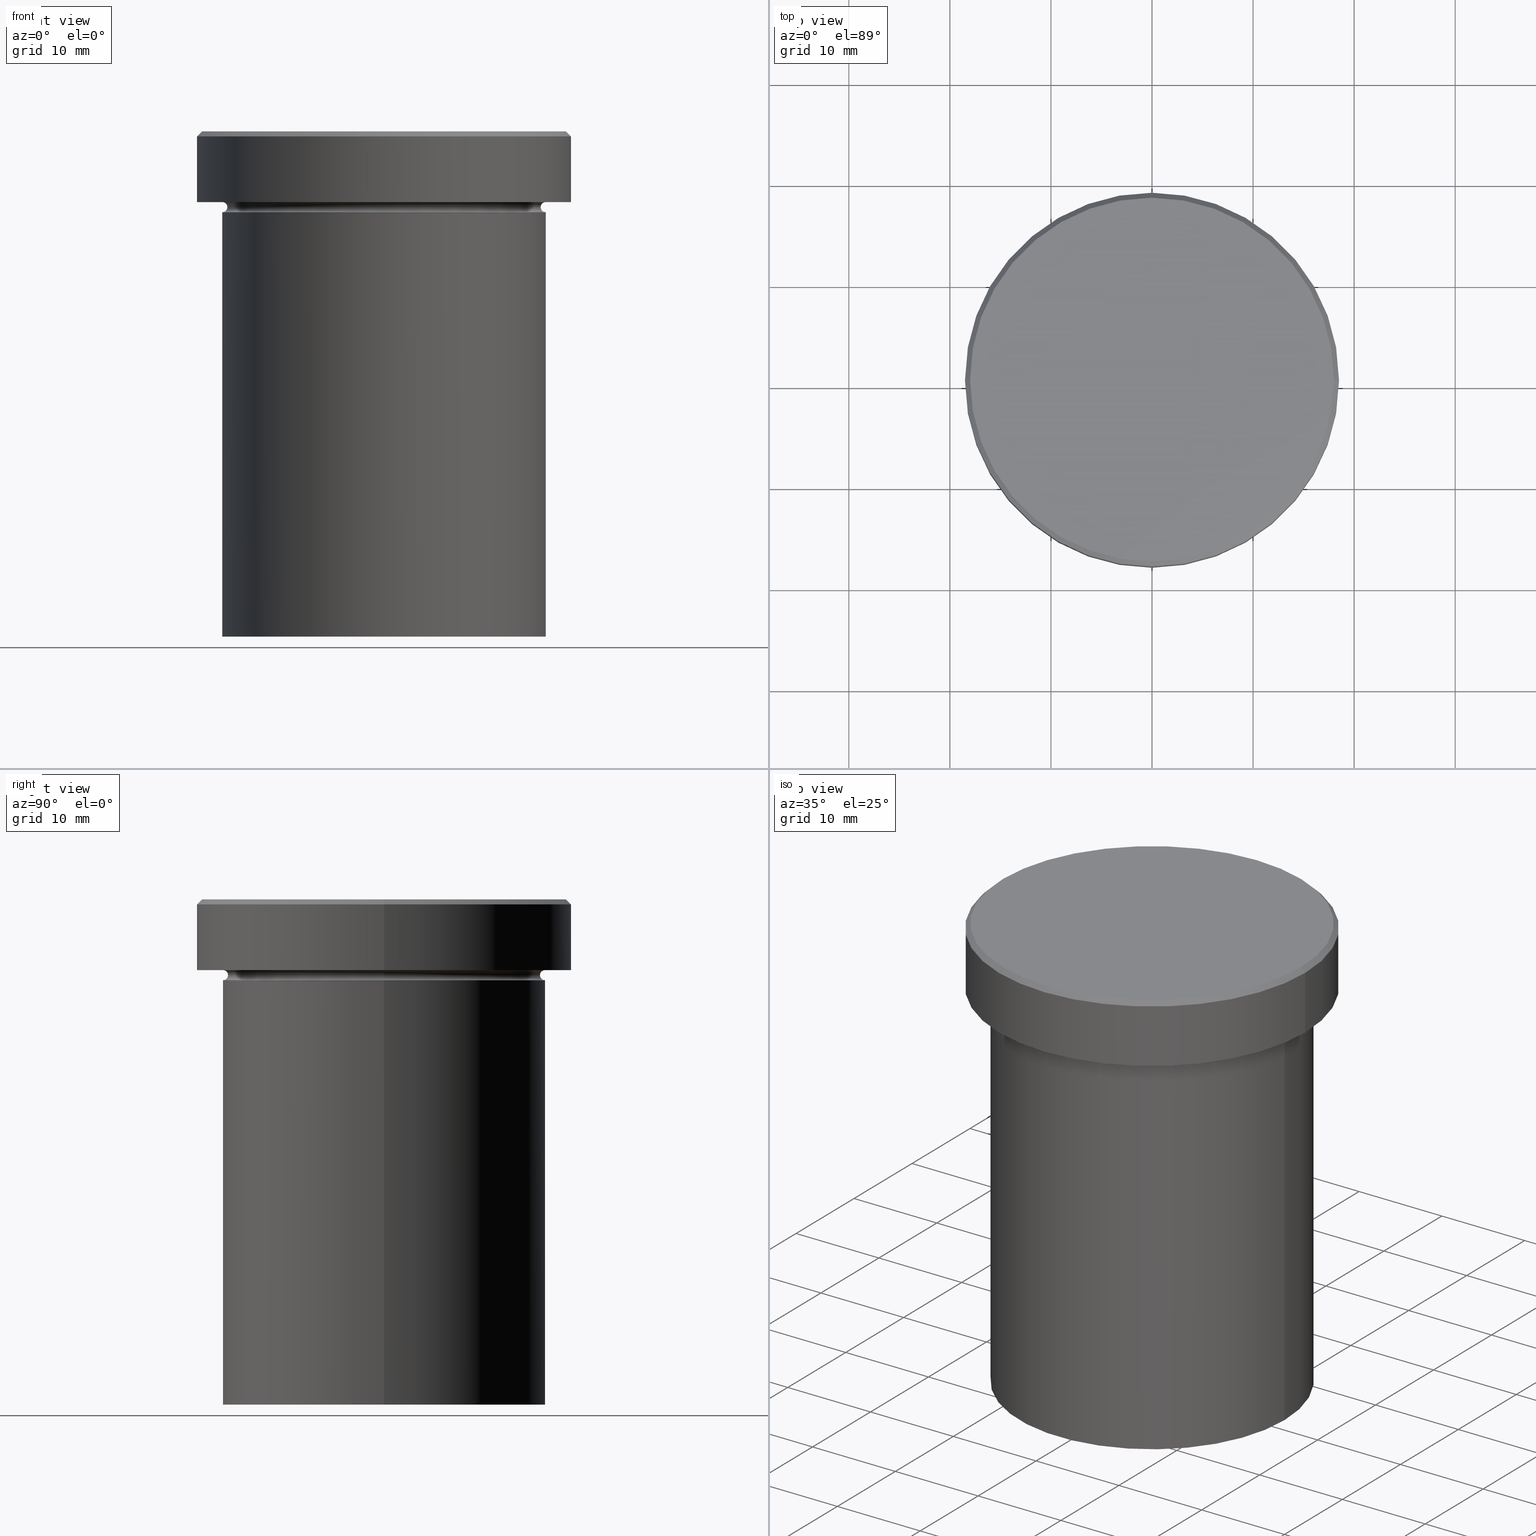
[diagram: canonical four-view strip — front | top / right | iso, engineering-drawing reading convention]
A machine part, canonical four-view strip (front | top / right | iso — engineering-drawing reading convention). The complete STEP part file that produces these views, byte-faithful:
ISO-10303-21;
HEADER;
FILE_DESCRIPTION (( 'STEP AP203' ),
    '1' );
FILE_NAME ('091a.STEP',
    '2024-01-02T18:54:28',
    ( '' ),
    ( '' ),
    'SwSTEP 2.0',
    'SolidWorks 2019',
    '' );
FILE_SCHEMA (( 'CONFIG_CONTROL_DESIGN' ));
ENDSEC;

DATA;
#1 = DATE_TIME_ROLE ( 'classification_date' ) ;
#2 = MANIFOLD_SOLID_BREP ( 'Zkosen�1', #281 ) ;
#3 = DIRECTION ( 'NONE',  ( 0.000000000000000000, 0.000000000000000000, -1.000000000000000000 ) ) ;
#4 = ORIENTED_EDGE ( 'NONE', *, *, #327, .F. ) ;
#5 = APPROVAL_DATE_TIME ( #103, #389 ) ;
#6 = LINE ( 'NONE', #222, #160 ) ;
#7 = AXIS2_PLACEMENT_3D ( 'NONE', #261, #41, #295 ) ;
#8 = COORDINATED_UNIVERSAL_TIME_OFFSET ( 1, 0, .AHEAD. ) ;
#9 = CARTESIAN_POINT ( 'NONE',  ( 0.000000000000000000, 0.000000000000000000, -7.500000000000000000 ) ) ;
#10 = CIRCLE ( 'NONE', #334, 15.50000000000000000 ) ;
#11 = EDGE_CURVE ( 'NONE', #29, #23, #303, .T. ) ;
#12 = FACE_OUTER_BOUND ( 'NONE', #300, .T. ) ;
#13 = CARTESIAN_POINT ( 'NONE',  ( -16.00000000000000000, 1.959434878635765131E-15, -7.500000000000000000 ) ) ;
#14 = CARTESIAN_POINT ( 'NONE',  ( 0.000000000000000000, 0.000000000000000000, 0.000000000000000000 ) ) ;
#15 = DIRECTION ( 'NONE',  ( -1.000000000000000000, -1.224646799147349509E-16, 0.000000000000000000 ) ) ;
#16 = FACE_OUTER_BOUND ( 'NONE', #335, .T. ) ;
#17 = ADVANCED_FACE ( 'NONE', ( #50 ), #141, .F. ) ;
#18 = CARTESIAN_POINT ( 'NONE',  ( 0.000000000000000000, 0.000000000000000000, -7.500000000000000000 ) ) ;
#19 = AXIS2_PLACEMENT_3D ( 'NONE', #183, #277, #185 ) ;
#20 = EDGE_LOOP ( 'NONE', ( #347, #258, #84, #198 ) ) ;
#21 = EDGE_CURVE ( 'NONE', #47, #213, #107, .T. ) ;
#22 = CARTESIAN_POINT ( 'NONE',  ( 0.000000000000000000, 0.000000000000000000, 0.000000000000000000 ) ) ;
#23 = VERTEX_POINT ( 'NONE', #56 ) ;
#24 = CARTESIAN_POINT ( 'NONE',  ( 15.50000000000000000, 0.000000000000000000, -7.500000000000000000 ) ) ;
#25 = AXIS2_PLACEMENT_3D ( 'NONE', #138, #69, #392 ) ;
#26 = ORIENTED_EDGE ( 'NONE', *, *, #76, .T. ) ;
#27 = ORIENTED_EDGE ( 'NONE', *, *, #181, .T. ) ;
#28 = CARTESIAN_POINT ( 'NONE',  ( 0.000000000000000000, 16.00000000000000000, -50.00000000000000000 ) ) ;
#29 = VERTEX_POINT ( 'NONE', #402 ) ;
#30 = DIRECTION ( 'NONE',  ( -1.000000000000000000, 0.000000000000000000, 0.000000000000000000 ) ) ;
#31 = EDGE_CURVE ( 'NONE', #188, #191, #343, .T. ) ;
#32 = PRODUCT_DEFINITION_SHAPE ( 'NONE', 'NONE',  #62 ) ;
#33 = PERSON_AND_ORGANIZATION ( #117, #241 ) ;
#34 = ORIENTED_EDGE ( 'NONE', *, *, #145, .T. ) ;
#35 = APPROVAL_STATUS ( 'not_yet_approved' ) ;
#36 = CC_DESIGN_PERSON_AND_ORGANIZATION_ASSIGNMENT ( #132, #92, ( #346 ) ) ;
#37 = CARTESIAN_POINT ( 'NONE',  ( 0.000000000000000000, 0.000000000000000000, 0.000000000000000000 ) ) ;
#38 = CIRCLE ( 'NONE', #149, 16.00000000000000000 ) ;
#39 = AXIS2_PLACEMENT_3D ( 'NONE', #398, #407, #123 ) ;
#40 = DIRECTION ( 'NONE',  ( 0.000000000000000000, 0.000000000000000000, -1.000000000000000000 ) ) ;
#41 = DIRECTION ( 'NONE',  ( 0.000000000000000000, -0.000000000000000000, 1.000000000000000000 ) ) ;
#42 = EDGE_CURVE ( 'NONE', #191, #188, #78, .T. ) ;
#43 = DIRECTION ( 'NONE',  ( -1.000000000000000000, 0.000000000000000000, 0.000000000000000000 ) ) ;
#44 = ORIENTED_EDGE ( 'NONE', *, *, #76, .F. ) ;
#45 = DIRECTION ( 'NONE',  ( -1.224646799147353207E-16, 1.000000000000000000, 0.000000000000000000 ) ) ;
#46 = ORIENTED_EDGE ( 'NONE', *, *, #327, .T. ) ;
#47 = VERTEX_POINT ( 'NONE', #406 ) ;
#48 = EDGE_CURVE ( 'NONE', #87, #99, #194, .T. ) ;
#49 = APPLICATION_PROTOCOL_DEFINITION ( 'international standard', 'config_control_design', 1994, #223 ) ;
#50 = FACE_OUTER_BOUND ( 'NONE', #374, .T. ) ;
#51 = AXIS2_PLACEMENT_3D ( 'NONE', #77, #240, #324 ) ;
#52 = AXIS2_PLACEMENT_3D ( 'NONE', #362, #171, #357 ) ;
#53 = DIRECTION ( 'NONE',  ( 0.000000000000000000, 0.000000000000000000, -1.000000000000000000 ) ) ;
#54 = EDGE_CURVE ( 'NONE', #184, #87, #388, .T. ) ;
#55 = DIRECTION ( 'NONE',  ( 1.000000000000000000, 0.000000000000000000, 0.000000000000000000 ) ) ;
#56 = CARTESIAN_POINT ( 'NONE',  ( 18.50000000000000000, 0.000000000000000000, -0.5000000000000004441 ) ) ;
#57 = CARTESIAN_POINT ( 'NONE',  ( 0.000000000000000000, 0.000000000000000000, -0.5000000000000004441 ) ) ;
#58 = CARTESIAN_POINT ( 'NONE',  ( 0.000000000000000000, 0.000000000000000000, 0.000000000000000000 ) ) ;
#59 = ORIENTED_EDGE ( 'NONE', *, *, #181, .F. ) ;
#60 = AXIS2_PLACEMENT_3D ( 'NONE', #57, #215, #210 ) ;
#61 = DATE_TIME_ROLE ( 'creation_date' ) ;
#62 = PRODUCT_DEFINITION ( 'NEZN�M�', '', #346, #147 ) ;
#63 = VERTEX_POINT ( 'NONE', #136 ) ;
#64 = EDGE_LOOP ( 'NONE', ( #217, #4 ) ) ;
#65 = ORIENTED_EDGE ( 'NONE', *, *, #48, .T. ) ;
#66 = APPROVAL_DATE_TIME ( #189, #400 ) ;
#67 = DIRECTION ( 'NONE',  ( -0.000000000000000000, -0.000000000000000000, 1.000000000000000000 ) ) ;
#68 = EDGE_CURVE ( 'NONE', #368, #47, #317, .T. ) ;
#69 = DIRECTION ( 'NONE',  ( 0.000000000000000000, 0.000000000000000000, -1.000000000000000000 ) ) ;
#70 = TOROIDAL_SURFACE ( 'NONE', #292, 16.00000000000000000, 0.5000000000000000000 ) ;
#71 = CYLINDRICAL_SURFACE ( 'NONE', #110, 16.00000000000000000 ) ;
#72 = AXIS2_PLACEMENT_3D ( 'NONE', #18, #403, #274 ) ;
#73 = VERTEX_POINT ( 'NONE', #135 ) ;
#74 = LOCAL_TIME ( 19, 54, 28.00000000000000000, #8 ) ;
#75 = CARTESIAN_POINT ( 'NONE',  ( 0.000000000000000000, 0.000000000000000000, -6.999999999999999112 ) ) ;
#76 = EDGE_CURVE ( 'NONE', #47, #368, #10, .T. ) ;
#77 = CARTESIAN_POINT ( 'NONE',  ( 0.000000000000000000, 0.000000000000000000, -50.00000000000000000 ) ) ;
#78 = CIRCLE ( 'NONE', #88, 18.00000000000000355 ) ;
#79 = DIRECTION ( 'NONE',  ( 1.000000000000000000, 0.000000000000000000, 0.000000000000000000 ) ) ;
#80 =( GEOMETRIC_REPRESENTATION_CONTEXT ( 3 ) GLOBAL_UNCERTAINTY_ASSIGNED_CONTEXT ( ( #331 ) ) GLOBAL_UNIT_ASSIGNED_CONTEXT ( ( #153, #246, #342 ) ) REPRESENTATION_CONTEXT ( 'NONE', 'WORKASPACE' ) );
#81 = CYLINDRICAL_SURFACE ( 'NONE', #320, 18.50000000000000000 ) ;
#82 = PERSON_AND_ORGANIZATION ( #117, #241 ) ;
#83 = DIRECTION ( 'NONE',  ( -0.000000000000000000, -1.000000000000000000, -0.000000000000000000 ) ) ;
#84 = ORIENTED_EDGE ( 'NONE', *, *, #91, .T. ) ;
#85 = CARTESIAN_POINT ( 'NONE',  ( 0.000000000000000000, 0.000000000000000000, 0.000000000000000000 ) ) ;
#86 = DIRECTION ( 'NONE',  ( -1.000000000000000000, 0.000000000000000000, -0.000000000000000000 ) ) ;
#87 = VERTEX_POINT ( 'NONE', #254 ) ;
#88 = AXIS2_PLACEMENT_3D ( 'NONE', #58, #154, #180 ) ;
#89 = ORIENTED_EDGE ( 'NONE', *, *, #394, .T. ) ;
#90 = ORIENTED_EDGE ( 'NONE', *, *, #172, .T. ) ;
#91 = EDGE_CURVE ( 'NONE', #188, #260, #6, .T. ) ;
#92 = PERSON_AND_ORGANIZATION_ROLE ( 'creator' ) ;
#93 = AXIS2_PLACEMENT_3D ( 'NONE', #197, #315, #166 ) ;
#94 = AXIS2_PLACEMENT_3D ( 'NONE', #85, #372, #120 ) ;
#95 = DIRECTION ( 'NONE',  ( 1.000000000000000000, 0.000000000000000000, 0.000000000000000000 ) ) ;
#96 = PERSON_AND_ORGANIZATION ( #117, #241 ) ;
#97 = CARTESIAN_POINT ( 'NONE',  ( 16.00000000000000000, 0.000000000000000000, 0.000000000000000000 ) ) ;
#98 = PRODUCT ( '091a', '091a', '', ( #118 ) ) ;
#99 = VERTEX_POINT ( 'NONE', #350 ) ;
#100 = COORDINATED_UNIVERSAL_TIME_OFFSET ( 1, 0, .AHEAD. ) ;
#101 = DIRECTION ( 'NONE',  ( 0.000000000000000000, 0.000000000000000000, -1.000000000000000000 ) ) ;
#102 = ADVANCED_FACE ( 'NONE', ( #230 ), #70, .F. ) ;
#103 = DATE_AND_TIME ( #279, #74 ) ;
#104 = CONICAL_SURFACE ( 'NONE', #359, 18.00000000000000355, 0.7853981633974447263 ) ;
#105 = ORIENTED_EDGE ( 'NONE', *, *, #157, .F. ) ;
#106 = DIRECTION ( 'NONE',  ( -1.000000000000000000, 1.224646799147349509E-16, 0.000000000000000000 ) ) ;
#107 = CIRCLE ( 'NONE', #177, 0.5000000000000004441 ) ;
#108 = EDGE_CURVE ( 'NONE', #29, #73, #129, .T. ) ;
#109 = DIRECTION ( 'NONE',  ( -0.000000000000000000, -0.000000000000000000, 1.000000000000000000 ) ) ;
#110 = AXIS2_PLACEMENT_3D ( 'NONE', #14, #142, #262 ) ;
#111 = AXIS2_PLACEMENT_3D ( 'NONE', #75, #322, #174 ) ;
#112 = CARTESIAN_POINT ( 'NONE',  ( 16.00000000000000000, 0.000000000000000000, -7.500000000000000000 ) ) ;
#113 = FACE_OUTER_BOUND ( 'NONE', #268, .T. ) ;
#114 = CC_DESIGN_PERSON_AND_ORGANIZATION_ASSIGNMENT ( #33, #256, ( #62 ) ) ;
#115 = DIRECTION ( 'NONE',  ( 1.000000000000000000, 0.000000000000000000, 0.000000000000000000 ) ) ;
#116 = CC_DESIGN_APPROVAL ( #400, ( #379 ) ) ;
#117 = PERSON ( 'NEUR�EN�', 'NEUR�EN�', 'NEUR�EN�', ('NEUR�EN�'), ('NEUR�EN�'), ('NEUR�EN�') ) ;
#118 = MECHANICAL_CONTEXT ( 'NONE', #239, 'mechanical' ) ;
#119 = ORIENTED_EDGE ( 'NONE', *, *, #91, .F. ) ;
#120 = DIRECTION ( 'NONE',  ( 1.000000000000000000, 0.000000000000000000, 0.000000000000000000 ) ) ;
#121 = EDGE_LOOP ( 'NONE', ( #263, #243 ) ) ;
#122 = FACE_OUTER_BOUND ( 'NONE', #284, .T. ) ;
#123 = DIRECTION ( 'NONE',  ( 1.000000000000000000, 0.000000000000000000, 0.000000000000000000 ) ) ;
#124 = DIRECTION ( 'NONE',  ( -0.000000000000000000, -0.000000000000000000, 1.000000000000000000 ) ) ;
#125 = ADVANCED_FACE ( 'NONE', ( #161 ), #314, .T. ) ;
#126 = ORIENTED_EDGE ( 'NONE', *, *, #306, .F. ) ;
#127 = DIRECTION ( 'NONE',  ( -1.000000000000000000, 0.000000000000000000, -0.000000000000000000 ) ) ;
#128 = LOCAL_TIME ( 19, 54, 28.00000000000000000, #302 ) ;
#129 = CIRCLE ( 'NONE', #93, 18.50000000000000000 ) ;
#130 = AXIS2_PLACEMENT_3D ( 'NONE', #112, #365, #207 ) ;
#131 = LINE ( 'NONE', #144, #338 ) ;
#132 = PERSON_AND_ORGANIZATION ( #117, #241 ) ;
#133 = EDGE_CURVE ( 'NONE', #63, #99, #380, .T. ) ;
#134 = COORDINATED_UNIVERSAL_TIME_OFFSET ( 1, 0, .AHEAD. ) ;
#135 = CARTESIAN_POINT ( 'NONE',  ( -18.50000000000000000, 2.265596578422603396E-15, -6.999999999999998224 ) ) ;
#136 = CARTESIAN_POINT ( 'NONE',  ( -16.00000000000000000, 1.959434878635765131E-15, -50.00000000000000000 ) ) ;
#137 = CIRCLE ( 'NONE', #271, 16.00000000000000000 ) ;
#138 = CARTESIAN_POINT ( 'NONE',  ( 0.000000000000000000, 0.000000000000000000, 0.000000000000000000 ) ) ;
#139 = EDGE_CURVE ( 'NONE', #191, #23, #131, .T. ) ;
#140 = DIRECTION ( 'NONE',  ( 0.7071067811865451302, 8.659560562354903276E-17, -0.7071067811865500152 ) ) ;
#141 = TOROIDAL_SURFACE ( 'NONE', #371, 16.00000000000000000, 0.5000000000000000000 ) ;
#142 = DIRECTION ( 'NONE',  ( -0.000000000000000000, -0.000000000000000000, 1.000000000000000000 ) ) ;
#143 = ORIENTED_EDGE ( 'NONE', *, *, #253, .T. ) ;
#144 = CARTESIAN_POINT ( 'NONE',  ( 18.00000000000000355, 2.204364238465235822E-15, 0.000000000000000000 ) ) ;
#145 = EDGE_CURVE ( 'NONE', #23, #260, #301, .T. ) ;
#146 = CARTESIAN_POINT ( 'NONE',  ( 16.00000000000000000, 0.000000000000000000, -50.00000000000000000 ) ) ;
#147 = DESIGN_CONTEXT ( 'detailed design', #223, 'design' ) ;
#148 = APPLICATION_PROTOCOL_DEFINITION ( 'international standard', 'config_control_design', 1994, #239 ) ;
#149 = AXIS2_PLACEMENT_3D ( 'NONE', #328, #390, #202 ) ;
#150 = CALENDAR_DATE ( 2024, 2, 1 ) ;
#151 = CARTESIAN_POINT ( 'NONE',  ( 0.000000000000000000, 0.000000000000000000, -7.500000000000000000 ) ) ;
#152 = ORIENTED_EDGE ( 'NONE', *, *, #133, .F. ) ;
#153 =( LENGTH_UNIT ( ) NAMED_UNIT ( * ) SI_UNIT ( .MILLI., .METRE. ) );
#154 = DIRECTION ( 'NONE',  ( -0.000000000000000000, -0.000000000000000000, 1.000000000000000000 ) ) ;
#155 = LOCAL_TIME ( 19, 54, 28.00000000000000000, #134 ) ;
#156 = FACE_OUTER_BOUND ( 'NONE', #358, .T. ) ;
#157 = EDGE_CURVE ( 'NONE', #368, #87, #304, .T. ) ;
#158 = ORIENTED_EDGE ( 'NONE', *, *, #42, .T. ) ;
#159 = COORDINATED_UNIVERSAL_TIME_OFFSET ( 1, 0, .AHEAD. ) ;
#160 = VECTOR ( 'NONE', #226, 1000.000000000000114 ) ;
#161 = FACE_OUTER_BOUND ( 'NONE', #121, .T. ) ;
#162 = SHAPE_DEFINITION_REPRESENTATION ( #32, #233 ) ;
#163 = CC_DESIGN_APPROVAL ( #187, ( #62 ) ) ;
#164 = PERSON_AND_ORGANIZATION ( #117, #241 ) ;
#165 = CALENDAR_DATE ( 2024, 2, 1 ) ;
#166 = DIRECTION ( 'NONE',  ( 1.000000000000000000, 0.000000000000000000, 0.000000000000000000 ) ) ;
#167 = DIRECTION ( 'NONE',  ( -0.000000000000000000, -0.000000000000000000, 1.000000000000000000 ) ) ;
#168 = VECTOR ( 'NONE', #109, 1000.000000000000000 ) ;
#169 = CARTESIAN_POINT ( 'NONE',  ( 0.000000000000000000, 0.000000000000000000, 0.000000000000000000 ) ) ;
#170 = EDGE_LOOP ( 'NONE', ( #312, #395 ) ) ;
#171 = DIRECTION ( 'NONE',  ( -0.000000000000000000, -0.000000000000000000, 1.000000000000000000 ) ) ;
#172 = EDGE_CURVE ( 'NONE', #99, #87, #38, .T. ) ;
#173 = DIRECTION ( 'NONE',  ( -0.000000000000000000, -0.000000000000000000, 1.000000000000000000 ) ) ;
#174 = DIRECTION ( 'NONE',  ( -1.000000000000000000, 0.000000000000000000, 0.000000000000000000 ) ) ;
#175 = PLANE ( 'NONE',  #321 ) ;
#176 = ORIENTED_EDGE ( 'NONE', *, *, #108, .T. ) ;
#177 = AXIS2_PLACEMENT_3D ( 'NONE', #212, #83, #333 ) ;
#178 = APPROVAL_ROLE ( '' ) ;
#179 = LOCAL_TIME ( 19, 54, 28.00000000000000000, #100 ) ;
#180 = DIRECTION ( 'NONE',  ( 1.000000000000000000, 0.000000000000000000, 0.000000000000000000 ) ) ;
#181 = EDGE_CURVE ( 'NONE', #368, #247, #208, .T. ) ;
#182 = TOROIDAL_SURFACE ( 'NONE', #19, 16.00000000000000000, 0.5000000000000000000 ) ;
#183 = CARTESIAN_POINT ( 'NONE',  ( 0.000000000000000000, 0.000000000000000000, -7.500000000000000000 ) ) ;
#184 = VERTEX_POINT ( 'NONE', #146 ) ;
#185 = DIRECTION ( 'NONE',  ( 1.000000000000000000, 0.000000000000000000, 0.000000000000000000 ) ) ;
#186 = AXIS2_PLACEMENT_3D ( 'NONE', #9, #386, #190 ) ;
#187 = APPROVAL ( #214, 'NEUR�EN�' ) ;
#188 = VERTEX_POINT ( 'NONE', #266 ) ;
#189 = DATE_AND_TIME ( #165, #339 ) ;
#190 = DIRECTION ( 'NONE',  ( 1.000000000000000000, 0.000000000000000000, 0.000000000000000000 ) ) ;
#191 = VERTEX_POINT ( 'NONE', #237 ) ;
#192 = APPROVAL_ROLE ( '' ) ;
#193 = ORIENTED_EDGE ( 'NONE', *, *, #42, .F. ) ;
#194 = CIRCLE ( 'NONE', #308, 16.00000000000000000 ) ;
#195 = CARTESIAN_POINT ( 'NONE',  ( 0.000000000000000000, 0.000000000000000000, -7.500000000000000000 ) ) ;
#196 = CC_DESIGN_DATE_AND_TIME_ASSIGNMENT ( #228, #61, ( #62 ) ) ;
#197 = CARTESIAN_POINT ( 'NONE',  ( 0.000000000000000000, 0.000000000000000000, -6.999999999999998224 ) ) ;
#198 = ORIENTED_EDGE ( 'NONE', *, *, #145, .F. ) ;
#199 = ORIENTED_EDGE ( 'NONE', *, *, #11, .F. ) ;
#200 = DIRECTION ( 'NONE',  ( 1.000000000000000000, 0.000000000000000000, 0.000000000000000000 ) ) ;
#201 = AXIS2_PLACEMENT_3D ( 'NONE', #264, #45, #15 ) ;
#202 = DIRECTION ( 'NONE',  ( 1.000000000000000000, 0.000000000000000000, 0.000000000000000000 ) ) ;
#203 = AXIS2_PLACEMENT_3D ( 'NONE', #13, #259, #106 ) ;
#204 = CARTESIAN_POINT ( 'NONE',  ( 0.000000000000000000, 0.000000000000000000, -6.999999999999999112 ) ) ;
#205 = ADVANCED_FACE ( 'NONE', ( #319 ), #397, .T. ) ;
#206 = DIRECTION ( 'NONE',  ( -0.000000000000000000, -0.000000000000000000, 1.000000000000000000 ) ) ;
#207 = DIRECTION ( 'NONE',  ( 0.000000000000000000, 0.000000000000000000, -1.000000000000000000 ) ) ;
#208 = CIRCLE ( 'NONE', #201, 0.5000000000000004441 ) ;
#209 = FACE_OUTER_BOUND ( 'NONE', #307, .T. ) ;
#210 = DIRECTION ( 'NONE',  ( 1.000000000000000000, 0.000000000000000000, 0.000000000000000000 ) ) ;
#211 = EDGE_CURVE ( 'NONE', #247, #213, #220, .T. ) ;
#212 = CARTESIAN_POINT ( 'NONE',  ( -16.00000000000000000, 0.000000000000000000, -7.500000000000000000 ) ) ;
#213 = VERTEX_POINT ( 'NONE', #294 ) ;
#214 = APPROVAL_STATUS ( 'not_yet_approved' ) ;
#215 = DIRECTION ( 'NONE',  ( 0.000000000000000000, 0.000000000000000000, -1.000000000000000000 ) ) ;
#216 = ADVANCED_FACE ( 'NONE', ( #16 ), #104, .T. ) ;
#217 = ORIENTED_EDGE ( 'NONE', *, *, #108, .F. ) ;
#218 = CIRCLE ( 'NONE', #51, 16.00000000000000000 ) ;
#219 = ORIENTED_EDGE ( 'NONE', *, *, #323, .T. ) ;
#220 = CIRCLE ( 'NONE', #111, 16.00000000000000000 ) ;
#221 = PERSON_AND_ORGANIZATION_ROLE ( 'design_supplier' ) ;
#222 = CARTESIAN_POINT ( 'NONE',  ( -18.00000000000000355, 0.000000000000000000, 0.000000000000000000 ) ) ;
#223 = APPLICATION_CONTEXT ( 'configuration controlled 3d designs of mechanical parts and assemblies' ) ;
#224 = DATE_AND_TIME ( #229, #155 ) ;
#225 = CC_DESIGN_DATE_AND_TIME_ASSIGNMENT ( #224, #1, ( #379 ) ) ;
#226 = DIRECTION ( 'NONE',  ( -0.7071067811865451302, 0.000000000000000000, -0.7071067811865500152 ) ) ;
#227 = EDGE_LOOP ( 'NONE', ( #152, #143, #409, #265 ) ) ;
#228 = DATE_AND_TIME ( #385, #179 ) ;
#229 = CALENDAR_DATE ( 2024, 2, 1 ) ;
#230 = FACE_OUTER_BOUND ( 'NONE', #318, .T. ) ;
#231 = ORIENTED_EDGE ( 'NONE', *, *, #323, .F. ) ;
#232 = LINE ( 'NONE', #235, #168 ) ;
#233 = ADVANCED_BREP_SHAPE_REPRESENTATION ( '091a', ( #2, #39 ), #80 ) ;
#234 = AXIS2_PLACEMENT_3D ( 'NONE', #393, #173, #200 ) ;
#235 = CARTESIAN_POINT ( 'NONE',  ( -18.50000000000000000, 2.265596578422603396E-15, 0.000000000000000000 ) ) ;
#236 = CIRCLE ( 'NONE', #234, 16.00000000000000000 ) ;
#237 = CARTESIAN_POINT ( 'NONE',  ( 18.00000000000000355, 2.234980408443919609E-15, 0.000000000000000000 ) ) ;
#238 = CARTESIAN_POINT ( 'NONE',  ( -18.50000000000000000, 2.265596578422603396E-15, -0.5000000000000004441 ) ) ;
#239 = APPLICATION_CONTEXT ( 'configuration controlled 3d designs of mechanical parts and assemblies' ) ;
#240 = DIRECTION ( 'NONE',  ( -0.000000000000000000, -0.000000000000000000, 1.000000000000000000 ) ) ;
#241 = ORGANIZATION ( 'NEUR�EN�', 'NEUR�EN�', '' ) ;
#242 = CC_DESIGN_PERSON_AND_ORGANIZATION_ASSIGNMENT ( #164, #221, ( #346 ) ) ;
#243 = ORIENTED_EDGE ( 'NONE', *, *, #253, .F. ) ;
#244 = PERSON_AND_ORGANIZATION ( #117, #241 ) ;
#245 = DIRECTION ( 'NONE',  ( 0.000000000000000000, 0.000000000000000000, -1.000000000000000000 ) ) ;
#246 =( NAMED_UNIT ( * ) PLANE_ANGLE_UNIT ( ) SI_UNIT ( $, .RADIAN. ) );
#247 = VERTEX_POINT ( 'NONE', #396 ) ;
#248 = VECTOR ( 'NONE', #354, 1000.000000000000000 ) ;
#249 = DIRECTION ( 'NONE',  ( -0.000000000000000000, -0.000000000000000000, 1.000000000000000000 ) ) ;
#250 = AXIS2_PLACEMENT_3D ( 'NONE', #325, #299, #79 ) ;
#251 = ORIENTED_EDGE ( 'NONE', *, *, #394, .F. ) ;
#252 = TOROIDAL_SURFACE ( 'NONE', #72, 16.00000000000000000, 0.5000000000000000000 ) ;
#253 = EDGE_CURVE ( 'NONE', #63, #184, #218, .T. ) ;
#254 = CARTESIAN_POINT ( 'NONE',  ( 16.00000000000000000, 0.000000000000000000, -8.000000000000000000 ) ) ;
#255 = PERSON_AND_ORGANIZATION ( #117, #241 ) ;
#256 = PERSON_AND_ORGANIZATION_ROLE ( 'creator' ) ;
#257 = ADVANCED_FACE ( 'NONE', ( #298 ), #361, .T. ) ;
#258 = ORIENTED_EDGE ( 'NONE', *, *, #31, .F. ) ;
#259 = DIRECTION ( 'NONE',  ( 1.224646799147353207E-16, 1.000000000000000000, 0.000000000000000000 ) ) ;
#260 = VERTEX_POINT ( 'NONE', #238 ) ;
#261 = CARTESIAN_POINT ( 'NONE',  ( 0.000000000000000000, 0.000000000000000000, 0.000000000000000000 ) ) ;
#262 = DIRECTION ( 'NONE',  ( 1.000000000000000000, 0.000000000000000000, 0.000000000000000000 ) ) ;
#263 = ORIENTED_EDGE ( 'NONE', *, *, #280, .F. ) ;
#264 = CARTESIAN_POINT ( 'NONE',  ( 16.00000000000000000, 1.959434878635765131E-15, -7.500000000000000000 ) ) ;
#265 = ORIENTED_EDGE ( 'NONE', *, *, #172, .F. ) ;
#266 = CARTESIAN_POINT ( 'NONE',  ( -18.00000000000000355, 0.000000000000000000, 0.000000000000000000 ) ) ;
#267 = AXIS2_PLACEMENT_3D ( 'NONE', #22, #310, #376 ) ;
#268 = EDGE_LOOP ( 'NONE', ( #369, #309, #353, #278 ) ) ;
#269 = AXIS2_PLACEMENT_3D ( 'NONE', #37, #167, #115 ) ;
#270 = CARTESIAN_POINT ( 'NONE',  ( 0.000000000000000000, 18.50000000000000000, -6.999999999999999112 ) ) ;
#271 = AXIS2_PLACEMENT_3D ( 'NONE', #204, #206, #43 ) ;
#272 = FACE_OUTER_BOUND ( 'NONE', #64, .T. ) ;
#273 = EDGE_CURVE ( 'NONE', #213, #247, #137, .T. ) ;
#274 = DIRECTION ( 'NONE',  ( 1.000000000000000000, 0.000000000000000000, 0.000000000000000000 ) ) ;
#275 = ORIENTED_EDGE ( 'NONE', *, *, #11, .T. ) ;
#276 = DIRECTION ( 'NONE',  ( -0.000000000000000000, -0.000000000000000000, 1.000000000000000000 ) ) ;
#277 = DIRECTION ( 'NONE',  ( -0.000000000000000000, -0.000000000000000000, 1.000000000000000000 ) ) ;
#278 = ORIENTED_EDGE ( 'NONE', *, *, #54, .F. ) ;
#279 = CALENDAR_DATE ( 2024, 2, 1 ) ;
#280 = EDGE_CURVE ( 'NONE', #184, #63, #236, .T. ) ;
#281 = CLOSED_SHELL ( 'NONE', ( #216, #17, #364, #340, #356, #125, #290, #383, #370, #205, #405, #102, #257 ) ) ;
#282 = DIRECTION ( 'NONE',  ( -0.000000000000000000, -0.000000000000000000, 1.000000000000000000 ) ) ;
#283 = CIRCLE ( 'NONE', #52, 18.50000000000000000 ) ;
#284 = EDGE_LOOP ( 'NONE', ( #44, #336, #90, #105 ) ) ;
#285 = VECTOR ( 'NONE', #282, 1000.000000000000000 ) ;
#286 = CC_DESIGN_APPROVAL ( #389, ( #346 ) ) ;
#287 = APPROVAL_ROLE ( '' ) ;
#288 = CARTESIAN_POINT ( 'NONE',  ( 0.000000000000000000, 0.000000000000000000, -8.000000000000000000 ) ) ;
#289 = SECURITY_CLASSIFICATION_LEVEL ( 'unclassified' ) ;
#290 = ADVANCED_FACE ( 'NONE', ( #12 ), #297, .T. ) ;
#291 = CARTESIAN_POINT ( 'NONE',  ( 0.000000000000000000, 0.000000000000000000, -7.500000000000000000 ) ) ;
#292 = AXIS2_PLACEMENT_3D ( 'NONE', #195, #101, #30 ) ;
#293 = CIRCLE ( 'NONE', #60, 18.50000000000000000 ) ;
#294 = CARTESIAN_POINT ( 'NONE',  ( -16.00000000000000000, 0.000000000000000000, -6.999999999999999112 ) ) ;
#295 = DIRECTION ( 'NONE',  ( 1.000000000000000000, 0.000000000000000000, 0.000000000000000000 ) ) ;
#296 = CC_DESIGN_PERSON_AND_ORGANIZATION_ASSIGNMENT ( #82, #332, ( #98 ) ) ;
#297 = PLANE ( 'NONE',  #7 ) ;
#298 = FACE_OUTER_BOUND ( 'NONE', #20, .T. ) ;
#299 = DIRECTION ( 'NONE',  ( 0.000000000000000000, 0.000000000000000000, -1.000000000000000000 ) ) ;
#300 = EDGE_LOOP ( 'NONE', ( #408, #158 ) ) ;
#301 = CIRCLE ( 'NONE', #250, 18.50000000000000000 ) ;
#302 = COORDINATED_UNIVERSAL_TIME_OFFSET ( 1, 0, .AHEAD. ) ;
#303 = LINE ( 'NONE', #404, #326 ) ;
#304 = CIRCLE ( 'NONE', #130, 0.5000000000000004441 ) ;
#305 = FACE_OUTER_BOUND ( 'NONE', #367, .T. ) ;
#306 = EDGE_CURVE ( 'NONE', #47, #99, #381, .T. ) ;
#307 = EDGE_LOOP ( 'NONE', ( #231, #46, #275, #34 ) ) ;
#308 = AXIS2_PLACEMENT_3D ( 'NONE', #288, #249, #95 ) ;
#309 = ORIENTED_EDGE ( 'NONE', *, *, #133, .T. ) ;
#310 = DIRECTION ( 'NONE',  ( -0.000000000000000000, -0.000000000000000000, 1.000000000000000000 ) ) ;
#311 = APPROVAL_PERSON_ORGANIZATION ( #244, #187, #178 ) ;
#312 = ORIENTED_EDGE ( 'NONE', *, *, #273, .T. ) ;
#313 = CC_DESIGN_PERSON_AND_ORGANIZATION_ASSIGNMENT ( #255, #348, ( #379 ) ) ;
#314 = PLANE ( 'NONE',  #360 ) ;
#315 = DIRECTION ( 'NONE',  ( -0.000000000000000000, -0.000000000000000000, 1.000000000000000000 ) ) ;
#316 = ORIENTED_EDGE ( 'NONE', *, *, #68, .F. ) ;
#317 = CIRCLE ( 'NONE', #186, 15.50000000000000000 ) ;
#318 = EDGE_LOOP ( 'NONE', ( #59, #351, #355, #344 ) ) ;
#319 = FACE_OUTER_BOUND ( 'NONE', #227, .T. ) ;
#320 = AXIS2_PLACEMENT_3D ( 'NONE', #375, #276, #55 ) ;
#321 = AXIS2_PLACEMENT_3D ( 'NONE', #270, #245, #86 ) ;
#322 = DIRECTION ( 'NONE',  ( -0.000000000000000000, -0.000000000000000000, 1.000000000000000000 ) ) ;
#323 = EDGE_CURVE ( 'NONE', #73, #260, #232, .T. ) ;
#324 = DIRECTION ( 'NONE',  ( 1.000000000000000000, 0.000000000000000000, 0.000000000000000000 ) ) ;
#325 = CARTESIAN_POINT ( 'NONE',  ( 0.000000000000000000, 0.000000000000000000, -0.5000000000000004441 ) ) ;
#326 = VECTOR ( 'NONE', #124, 1000.000000000000000 ) ;
#327 = EDGE_CURVE ( 'NONE', #73, #29, #283, .T. ) ;
#328 = CARTESIAN_POINT ( 'NONE',  ( 0.000000000000000000, 0.000000000000000000, -8.000000000000000000 ) ) ;
#329 = APPROVAL_PERSON_ORGANIZATION ( #96, #389, #287 ) ;
#330 = FACE_BOUND ( 'NONE', #170, .T. ) ;
#331 = UNCERTAINTY_MEASURE_WITH_UNIT (LENGTH_MEASURE( 1.000000000000000082E-05 ), #153, 'distance_accuracy_value', 'NONE');
#332 = PERSON_AND_ORGANIZATION_ROLE ( 'design_owner' ) ;
#333 = DIRECTION ( 'NONE',  ( 0.000000000000000000, 0.000000000000000000, -1.000000000000000000 ) ) ;
#334 = AXIS2_PLACEMENT_3D ( 'NONE', #291, #67, #384 ) ;
#335 = EDGE_LOOP ( 'NONE', ( #193, #377, #251, #119 ) ) ;
#336 = ORIENTED_EDGE ( 'NONE', *, *, #306, .T. ) ;
#337 = APPROVAL_DATE_TIME ( #401, #187 ) ;
#338 = VECTOR ( 'NONE', #140, 1000.000000000000114 ) ;
#339 = LOCAL_TIME ( 19, 54, 28.00000000000000000, #159 ) ;
#340 = ADVANCED_FACE ( 'NONE', ( #113 ), #71, .T. ) ;
#341 = DIRECTION ( 'NONE',  ( -1.000000000000000000, 0.000000000000000000, 0.000000000000000000 ) ) ;
#342 =( NAMED_UNIT ( * ) SI_UNIT ( $, .STERADIAN. ) SOLID_ANGLE_UNIT ( ) );
#343 = CIRCLE ( 'NONE', #267, 18.00000000000000355 ) ;
#344 = ORIENTED_EDGE ( 'NONE', *, *, #211, .F. ) ;
#345 = PRODUCT_RELATED_PRODUCT_CATEGORY ( 'detail', '', ( #98 ) ) ;
#346 = PRODUCT_DEFINITION_FORMATION_WITH_SPECIFIED_SOURCE ( 'LIBOVOLN�', '', #98, .NOT_KNOWN. ) ;
#347 = ORIENTED_EDGE ( 'NONE', *, *, #139, .F. ) ;
#348 = PERSON_AND_ORGANIZATION_ROLE ( 'classification_officer' ) ;
#349 = CARTESIAN_POINT ( 'NONE',  ( -16.00000000000000000, 1.959434878635765131E-15, 0.000000000000000000 ) ) ;
#350 = CARTESIAN_POINT ( 'NONE',  ( -16.00000000000000000, 1.959434878635765131E-15, -8.000000000000000000 ) ) ;
#351 = ORIENTED_EDGE ( 'NONE', *, *, #68, .T. ) ;
#352 = PERSON_AND_ORGANIZATION ( #117, #241 ) ;
#353 = ORIENTED_EDGE ( 'NONE', *, *, #48, .F. ) ;
#354 = DIRECTION ( 'NONE',  ( -0.000000000000000000, -0.000000000000000000, 1.000000000000000000 ) ) ;
#355 = ORIENTED_EDGE ( 'NONE', *, *, #21, .T. ) ;
#356 = ADVANCED_FACE ( 'NONE', ( #305 ), #366, .T. ) ;
#357 = DIRECTION ( 'NONE',  ( 1.000000000000000000, 0.000000000000000000, 0.000000000000000000 ) ) ;
#358 = EDGE_LOOP ( 'NONE', ( #126, #316, #391, #65 ) ) ;
#359 = AXIS2_PLACEMENT_3D ( 'NONE', #169, #40, #363 ) ;
#360 = AXIS2_PLACEMENT_3D ( 'NONE', #28, #3, #127 ) ;
#361 = CONICAL_SURFACE ( 'NONE', #25, 18.00000000000000355, 0.7853981633974447263 ) ;
#362 = CARTESIAN_POINT ( 'NONE',  ( 0.000000000000000000, 0.000000000000000000, -6.999999999999998224 ) ) ;
#363 = DIRECTION ( 'NONE',  ( -1.000000000000000000, 0.000000000000000000, 0.000000000000000000 ) ) ;
#364 = ADVANCED_FACE ( 'NONE', ( #122 ), #252, .F. ) ;
#365 = DIRECTION ( 'NONE',  ( 0.000000000000000000, -1.000000000000000000, 0.000000000000000000 ) ) ;
#366 = CYLINDRICAL_SURFACE ( 'NONE', #94, 18.50000000000000000 ) ;
#367 = EDGE_LOOP ( 'NONE', ( #176, #219, #89, #199 ) ) ;
#368 = VERTEX_POINT ( 'NONE', #24 ) ;
#369 = ORIENTED_EDGE ( 'NONE', *, *, #280, .T. ) ;
#370 = ADVANCED_FACE ( 'NONE', ( #330, #272 ), #175, .T. ) ;
#371 = AXIS2_PLACEMENT_3D ( 'NONE', #151, #53, #341 ) ;
#372 = DIRECTION ( 'NONE',  ( -0.000000000000000000, -0.000000000000000000, 1.000000000000000000 ) ) ;
#373 = ORIENTED_EDGE ( 'NONE', *, *, #21, .F. ) ;
#374 = EDGE_LOOP ( 'NONE', ( #26, #27, #382, #373 ) ) ;
#375 = CARTESIAN_POINT ( 'NONE',  ( 0.000000000000000000, 0.000000000000000000, 0.000000000000000000 ) ) ;
#376 = DIRECTION ( 'NONE',  ( 1.000000000000000000, 0.000000000000000000, 0.000000000000000000 ) ) ;
#377 = ORIENTED_EDGE ( 'NONE', *, *, #139, .T. ) ;
#378 = APPROVAL_STATUS ( 'not_yet_approved' ) ;
#379 = SECURITY_CLASSIFICATION ( '', '', #289 ) ;
#380 = LINE ( 'NONE', #349, #285 ) ;
#381 = CIRCLE ( 'NONE', #203, 0.5000000000000004441 ) ;
#382 = ORIENTED_EDGE ( 'NONE', *, *, #273, .F. ) ;
#383 = ADVANCED_FACE ( 'NONE', ( #209 ), #81, .T. ) ;
#384 = DIRECTION ( 'NONE',  ( 1.000000000000000000, 0.000000000000000000, 0.000000000000000000 ) ) ;
#385 = CALENDAR_DATE ( 2024, 2, 1 ) ;
#386 = DIRECTION ( 'NONE',  ( -0.000000000000000000, -0.000000000000000000, 1.000000000000000000 ) ) ;
#387 = APPROVAL_PERSON_ORGANIZATION ( #352, #400, #192 ) ;
#388 = LINE ( 'NONE', #97, #248 ) ;
#389 = APPROVAL ( #378, 'NEUR�EN�' ) ;
#390 = DIRECTION ( 'NONE',  ( -0.000000000000000000, -0.000000000000000000, 1.000000000000000000 ) ) ;
#391 = ORIENTED_EDGE ( 'NONE', *, *, #157, .T. ) ;
#392 = DIRECTION ( 'NONE',  ( -1.000000000000000000, 0.000000000000000000, 0.000000000000000000 ) ) ;
#393 = CARTESIAN_POINT ( 'NONE',  ( 0.000000000000000000, 0.000000000000000000, -50.00000000000000000 ) ) ;
#394 = EDGE_CURVE ( 'NONE', #260, #23, #293, .T. ) ;
#395 = ORIENTED_EDGE ( 'NONE', *, *, #211, .T. ) ;
#396 = CARTESIAN_POINT ( 'NONE',  ( 16.00000000000000000, 1.959434878635765131E-15, -6.999999999999999112 ) ) ;
#397 = CYLINDRICAL_SURFACE ( 'NONE', #269, 16.00000000000000000 ) ;
#398 = CARTESIAN_POINT ( 'NONE',  ( 0.000000000000000000, 0.000000000000000000, 0.000000000000000000 ) ) ;
#399 = CC_DESIGN_SECURITY_CLASSIFICATION ( #379, ( #346 ) ) ;
#400 = APPROVAL ( #35, 'NEUR�EN�' ) ;
#401 = DATE_AND_TIME ( #150, #128 ) ;
#402 = CARTESIAN_POINT ( 'NONE',  ( 18.50000000000000000, 0.000000000000000000, -6.999999999999998224 ) ) ;
#403 = DIRECTION ( 'NONE',  ( -0.000000000000000000, -0.000000000000000000, 1.000000000000000000 ) ) ;
#404 = CARTESIAN_POINT ( 'NONE',  ( 18.50000000000000000, 0.000000000000000000, 0.000000000000000000 ) ) ;
#405 = ADVANCED_FACE ( 'NONE', ( #156 ), #182, .F. ) ;
#406 = CARTESIAN_POINT ( 'NONE',  ( -15.50000000000000000, 1.928818708657081344E-15, -7.500000000000000000 ) ) ;
#407 = DIRECTION ( 'NONE',  ( 0.000000000000000000, 0.000000000000000000, 1.000000000000000000 ) ) ;
#408 = ORIENTED_EDGE ( 'NONE', *, *, #31, .T. ) ;
#409 = ORIENTED_EDGE ( 'NONE', *, *, #54, .T. ) ;
ENDSEC;
END-ISO-10303-21;
